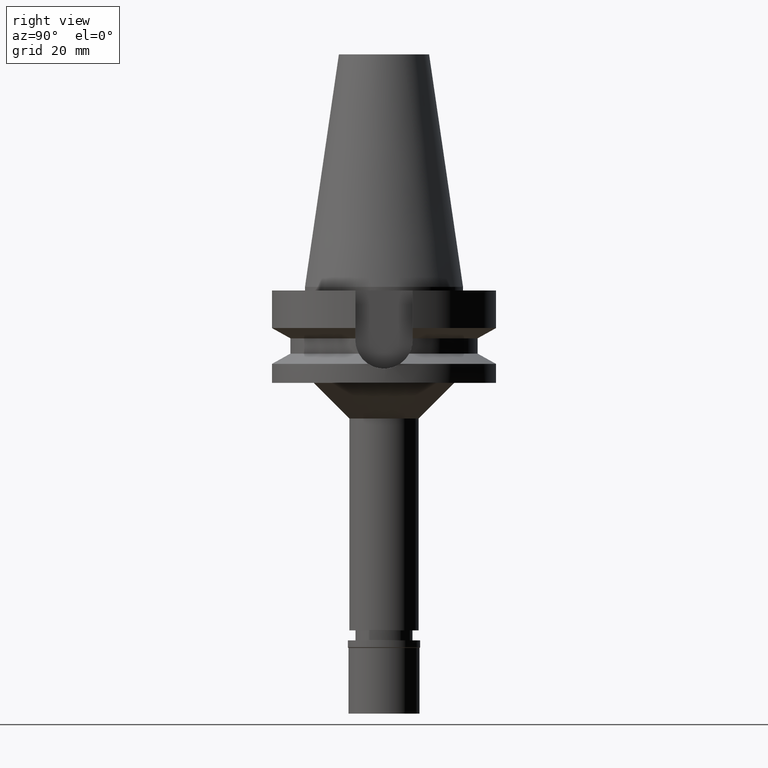
[diagram: clean part render]
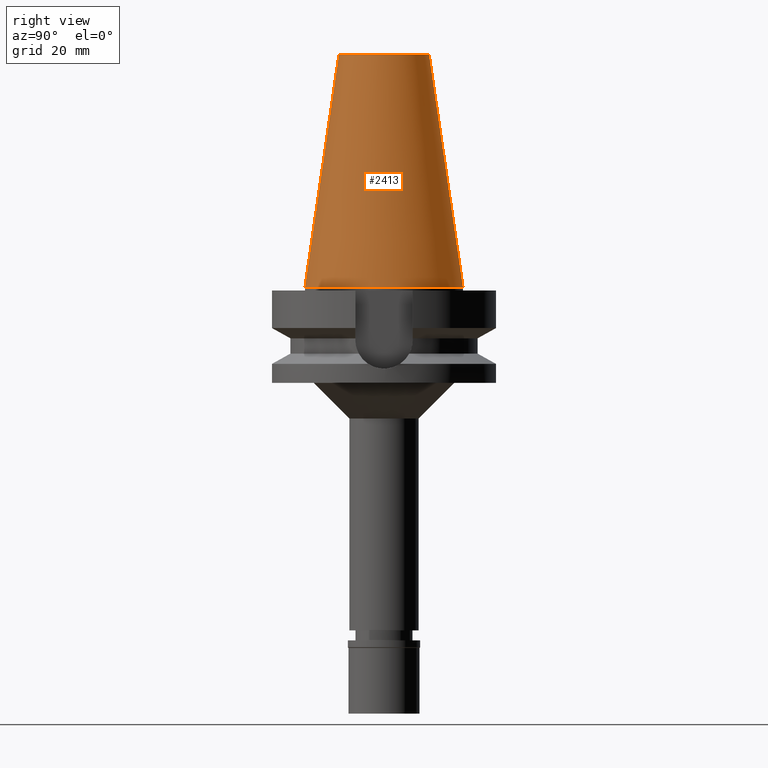
[diagram: same view with one face highlighted and labeled with its STEP entity id]
A machine part, right view. The second image highlights one B-rep face of the part: STEP entity #2413.
In plain terms, the highlighted conical surface has half-angle 8.297 deg.
Its self-contained STEP definition (entity closure, byte-faithful):
#26 = EDGE_CURVE ( 'NONE', #2845, #321, #2311, .T. ) ;
#218 = DIRECTION ( 'NONE',  ( 0.0000000000000000000, -0.1443043893539925626, -0.9895333461855498891 ) ) ;
#241 = CARTESIAN_POINT ( 'NONE',  ( 0.0000000000000000000, 12.68766899429999917, 65.40000000000000568 ) ) ;
#318 = CARTESIAN_POINT ( 'NONE',  ( 0.0000000000000000000, 22.22500000000000142, -7.105427357600999334E-14 ) ) ;
#321 = VERTEX_POINT ( 'NONE', #1703 ) ;
#349 = ORIENTED_EDGE ( 'NONE', *, *, #731, .F. ) ;
#468 = EDGE_CURVE ( 'NONE', #1086, #321, #2577, .T. ) ;
#660 = AXIS2_PLACEMENT_3D ( 'NONE', #2033, #1777, #2246 ) ;
#731 = EDGE_CURVE ( 'NONE', #2761, #1086, #966, .T. ) ;
#856 = CARTESIAN_POINT ( 'NONE',  ( 0.0000000000000000000, 0.0000000000000000000, 65.40000000000000568 ) ) ;
#857 = ORIENTED_EDGE ( 'NONE', *, *, #26, .T. ) ;
#966 = LINE ( 'NONE', #241, #2662 ) ;
#1086 = VERTEX_POINT ( 'NONE', #318 ) ;
#1092 = DIRECTION ( 'NONE',  ( 0.0000000000000000000, 0.0000000000000000000, -1.000000000000000000 ) ) ;
#1173 = CARTESIAN_POINT ( 'NONE',  ( 0.0000000000000000000, -12.68766899429999917, 65.40000000000000568 ) ) ;
#1213 = DIRECTION ( 'NONE',  ( 0.0000000000000000000, 0.1443043893539925626, -0.9895333461855498891 ) ) ;
#1318 = DIRECTION ( 'NONE',  ( 0.0000000000000000000, 1.000000000000000000, 0.0000000000000000000 ) ) ;
#1356 = DIRECTION ( 'NONE',  ( 0.0000000000000000000, 0.0000000000000000000, -1.000000000000000000 ) ) ;
#1540 = VECTOR ( 'NONE', #218, 1000.000000000000114 ) ;
#1679 = EDGE_LOOP ( 'NONE', ( #2034, #857, #2998, #349 ) ) ;
#1703 = CARTESIAN_POINT ( 'NONE',  ( 0.0000000000000000000, -22.22500000000000142, -2.273736754432000254E-13 ) ) ;
#1735 = CARTESIAN_POINT ( 'NONE',  ( 0.0000000000000000000, 12.68766899429999917, 65.40000000000000568 ) ) ;
#1777 = DIRECTION ( 'NONE',  ( 0.0000000000000000000, 0.0000000000000000000, -1.000000000000000000 ) ) ;
#1990 = FACE_OUTER_BOUND ( 'NONE', #1679, .T. ) ;
#2033 = CARTESIAN_POINT ( 'NONE',  ( 0.0000000000000000000, 0.0000000000000000000, -2.273736754432000254E-13 ) ) ;
#2034 = ORIENTED_EDGE ( 'NONE', *, *, #2909, .T. ) ;
#2092 = DIRECTION ( 'NONE',  ( 0.0000000000000000000, -1.000000000000000000, 0.0000000000000000000 ) ) ;
#2246 = DIRECTION ( 'NONE',  ( 0.0000000000000000000, 1.000000000000000000, 0.0000000000000000000 ) ) ;
#2272 = CONICAL_SURFACE ( 'NONE', #2456, 17.45633449714999941, 0.1448099680379422438 ) ;
#2311 = LINE ( 'NONE', #1173, #1540 ) ;
#2413 = ADVANCED_FACE ( 'NONE', ( #1990 ), #2272, .T. ) ;
#2456 = AXIS2_PLACEMENT_3D ( 'NONE', #2954, #1092, #2092 ) ;
#2577 = CIRCLE ( 'NONE', #660, 22.22500000000000142 ) ;
#2662 = VECTOR ( 'NONE', #1213, 1000.000000000000114 ) ;
#2688 = CARTESIAN_POINT ( 'NONE',  ( 0.0000000000000000000, -12.68766899429999917, 65.40000000000000568 ) ) ;
#2761 = VERTEX_POINT ( 'NONE', #1735 ) ;
#2845 = VERTEX_POINT ( 'NONE', #2688 ) ;
#2909 = EDGE_CURVE ( 'NONE', #2761, #2845, #2952, .T. ) ;
#2952 = CIRCLE ( 'NONE', #3109, 12.68766899429999917 ) ;
#2954 = CARTESIAN_POINT ( 'NONE',  ( 0.0000000000000000000, 0.0000000000000000000, 32.70000000000000284 ) ) ;
#2998 = ORIENTED_EDGE ( 'NONE', *, *, #468, .F. ) ;
#3109 = AXIS2_PLACEMENT_3D ( 'NONE', #856, #1356, #1318 ) ;